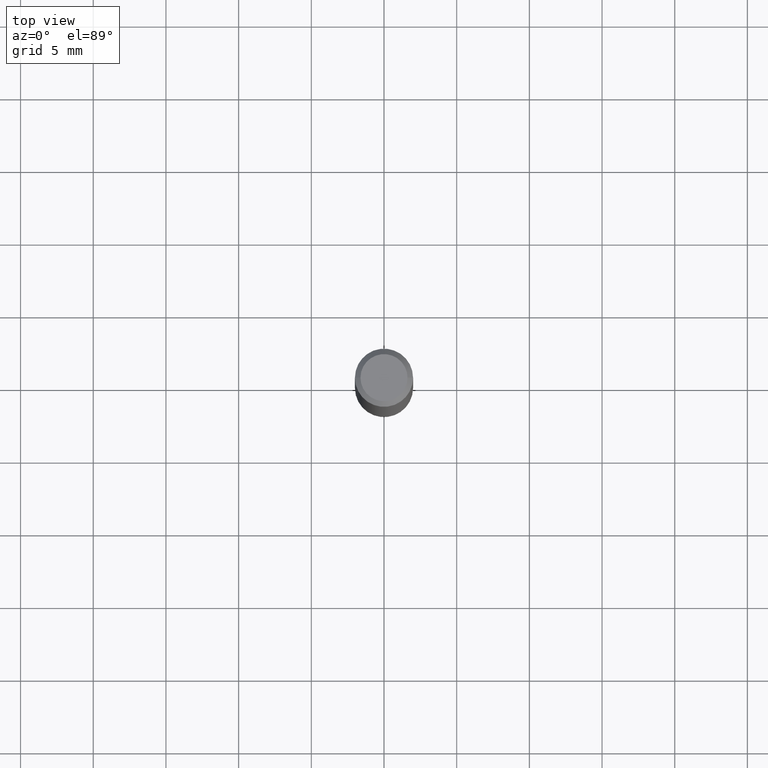
[diagram: clean part render]
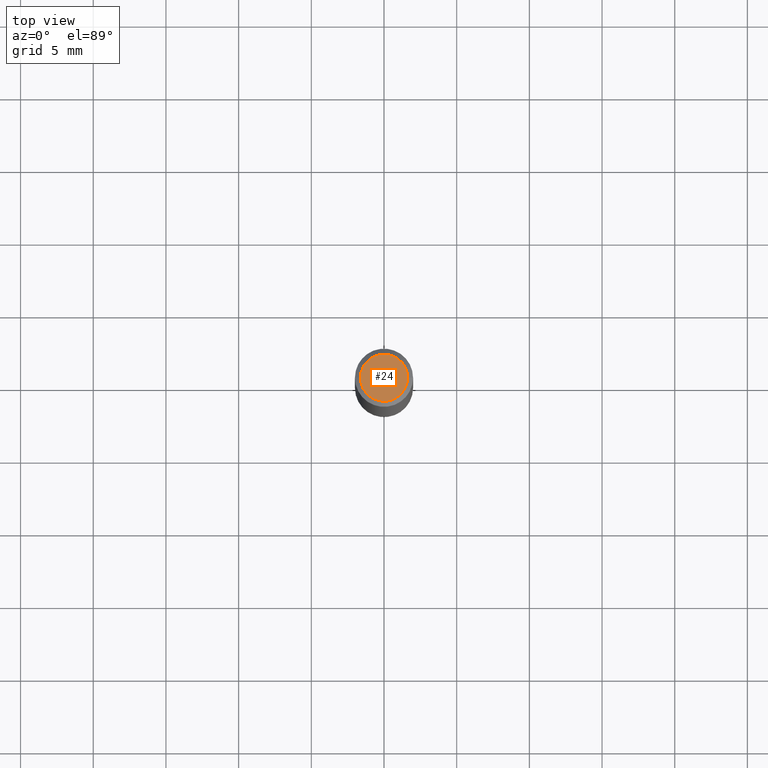
[diagram: same view with one face highlighted and labeled with its STEP entity id]
A machine part, top view. The second image highlights one B-rep face of the part: STEP entity #24.
In plain terms, the highlighted planar face has unit normal (0, -0, -1).
Its self-contained STEP definition (entity closure, byte-faithful):
#12 = PLANE ( 'NONE',  #201 ) ;
#15 = FACE_OUTER_BOUND ( 'NONE', #124, .T. ) ;
#24 = ADVANCED_FACE ( 'NONE', ( #15 ), #12, .F. ) ;
#57 = DIRECTION ( 'NONE',  ( 2.438088387897960049E-29, -3.491481338843145188E-15, -1.000000000000000000 ) ) ;
#70 = CIRCLE ( 'NONE', #212, 0.06375000000000000111 ) ;
#75 = EDGE_CURVE ( 'NONE', #445, #403, #434, .T. ) ;
#113 = AXIS2_PLACEMENT_3D ( 'NONE', #332, #146, #175 ) ;
#124 = EDGE_LOOP ( 'NONE', ( #339, #249 ) ) ;
#135 = DIRECTION ( 'NONE',  ( -2.445468806185136597E-29, 3.491481338843145583E-15, 1.000000000000000000 ) ) ;
#146 = DIRECTION ( 'NONE',  ( -2.445468806185136597E-29, 3.491481338843145583E-15, 1.000000000000000000 ) ) ;
#175 = DIRECTION ( 'NONE',  ( 1.000000000000000000, -6.982962677686265922E-15, 4.947888571036530338E-29 ) ) ;
#181 = CARTESIAN_POINT ( 'NONE',  ( 0.06375000000000000111, -5.149965923825465084E-16, -7.585149652132491859E-16 ) ) ;
#184 = EDGE_CURVE ( 'NONE', #403, #445, #70, .T. ) ;
#201 = AXIS2_PLACEMENT_3D ( 'NONE', #317, #57, #346 ) ;
#212 = AXIS2_PLACEMENT_3D ( 'NONE', #446, #135, #283 ) ;
#249 = ORIENTED_EDGE ( 'NONE', *, *, #184, .T. ) ;
#283 = DIRECTION ( 'NONE',  ( 1.000000000000000000, -6.982962677686265922E-15, 4.947888571036530338E-29 ) ) ;
#317 = CARTESIAN_POINT ( 'NONE',  ( 4.451638707024993845E-16, 0.06375000000000000111, -6.018394179578767011E-16 ) ) ;
#332 = CARTESIAN_POINT ( 'NONE',  ( 1.854924686453612983E-44, -2.648340846275329000E-30, -7.585149652132525386E-16 ) ) ;
#339 = ORIENTED_EDGE ( 'NONE', *, *, #75, .T. ) ;
#346 = DIRECTION ( 'NONE',  ( -1.000000000000000000, 6.982962677686265922E-15, -4.876176775795935793E-29 ) ) ;
#394 = CARTESIAN_POINT ( 'NONE',  ( -0.06375000000000000111, 4.713499807438215436E-16, -7.585149652132556940E-16 ) ) ;
#403 = VERTEX_POINT ( 'NONE', #181 ) ;
#434 = CIRCLE ( 'NONE', #113, 0.06375000000000000111 ) ;
#445 = VERTEX_POINT ( 'NONE', #394 ) ;
#446 = CARTESIAN_POINT ( 'NONE',  ( 1.854924686453612983E-44, -2.648340846275329000E-30, -7.585149652132525386E-16 ) ) ;